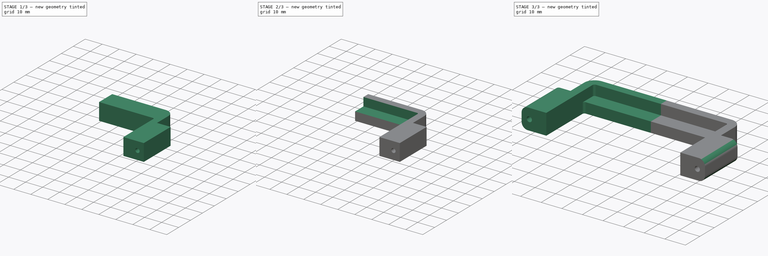
[diagram: build sequence overview — one tinted view per stage of 3, left to right]
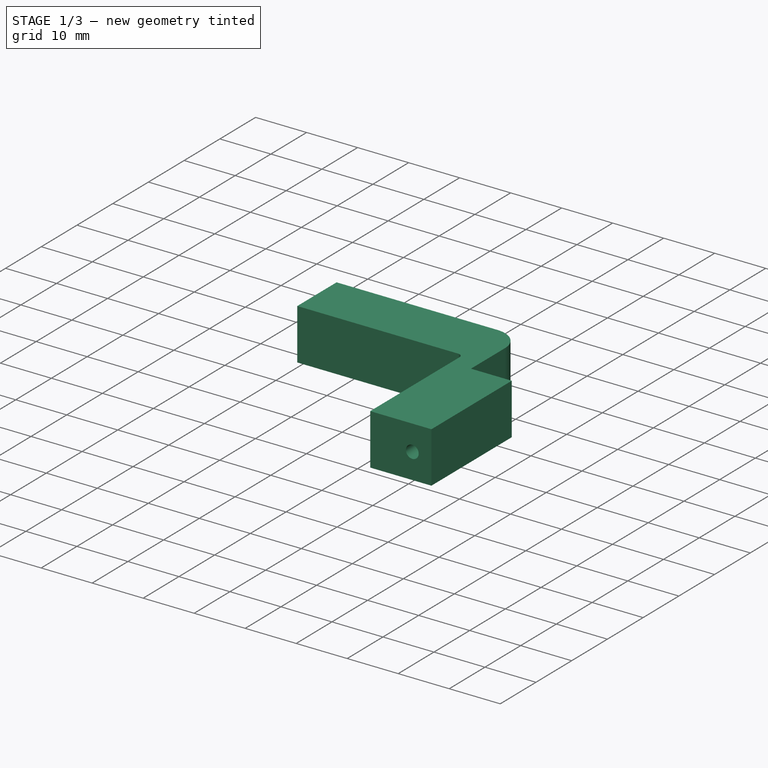
[diagram: stage 1 of 3 — iso view after this stage's code; geometry added in this stage tinted green]
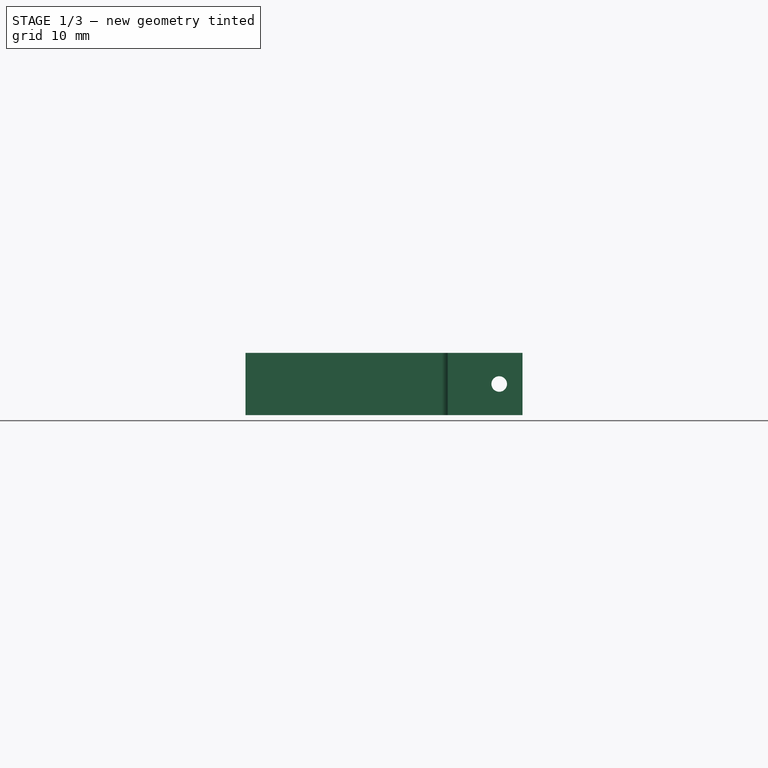
[diagram: stage 1 of 3 — front view after this stage's code; geometry added in this stage tinted green]
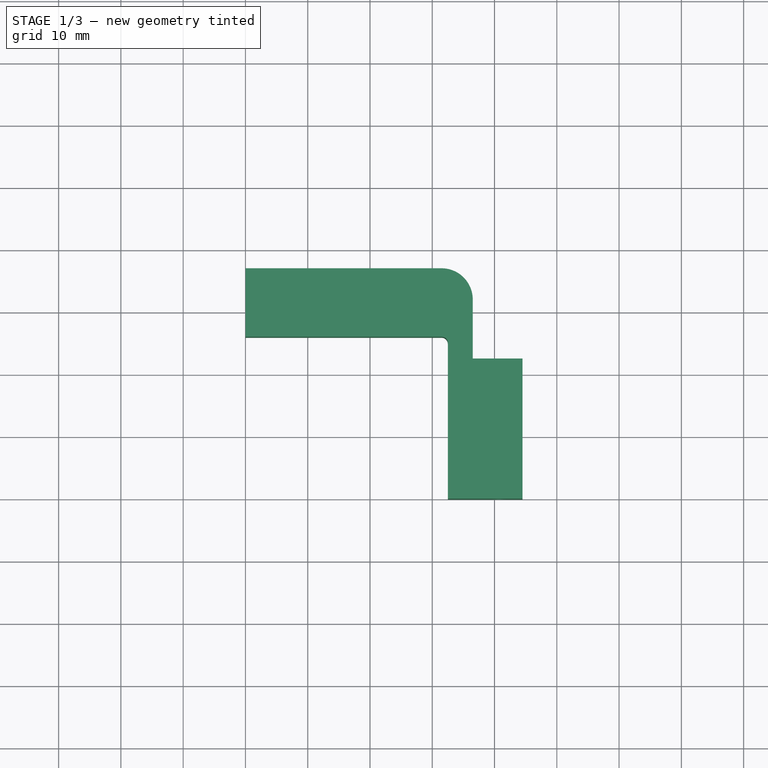
[diagram: stage 1 of 3 — top view after this stage's code; geometry added in this stage tinted green]
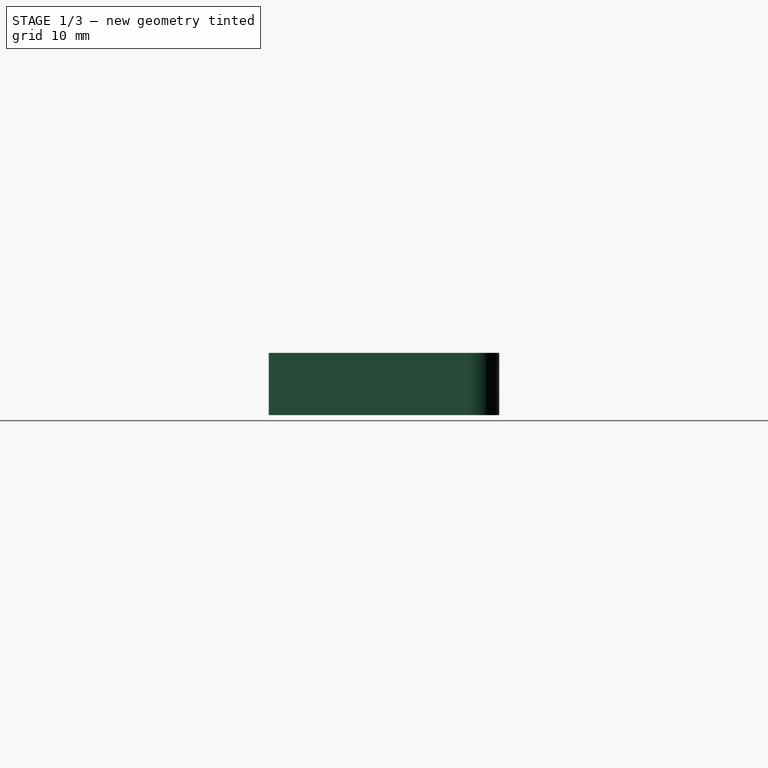
[diagram: stage 1 of 3 — right view after this stage's code; geometry added in this stage tinted green]
FCSTD DOCUMENT  (FreeCAD 1.0R39109 (Git))
Label: Universal 2-Step Clamp
License: All rights reserved
LicenseURL: http://en.wikipedia.org/wiki/All_rights_reserved
objects: Sketcher::SketchObject×3, PartDesign::Pocket×2, Spreadsheet::Sheet×1, PartDesign::Pad×1, PartDesign::Fillet×1, PartDesign::Mirrored×1, PartDesign::Body×1
note: 21 computed .brp shape members not serialized (recipe doc carries the construction recipe); baked Part::Feature solids carry a one-line shape summary decoded from their .brp

FEATURE [Sketcher::SketchObject] Sketch
  ArcFitTolerance = 1e-06
  AttachmentSupport = -> [XY_Plane]
  FullyConstrained = true
  MakeInternals = false
  MapMode = 5
  expr: Constraints[21] = Spreadsheet.inner_radius
  expr: Constraints[22] = Spreadsheet.object_width / 2
  expr: Constraints[23] = Spreadsheet.nail_support_height
  expr: Constraints[24] = Spreadsheet.nail_support_width
  expr: Constraints[25] = Spreadsheet.object_height + Spreadsheet.clamp_thickness
  expr: Constraints[26] = Spreadsheet.object_height_step_2
  expr: Constraints[31] = Spreadsheet.inner_radius + Spreadsheet.clamp_thickness
  sketch-geometry (10):
    g0: LineSegment StartX=0 StartY=26 StartZ=0 EndX=31.5 EndY=26 EndZ=0
    g1: LineSegment StartX=0 StartY=37 StartZ=0 EndX=31.5 EndY=37 EndZ=0
    g2: LineSegment StartX=32.5 StartY=25 StartZ=0 EndX=32.5 EndY=0 EndZ=0
    g3: ArcOfCircle CenterX=31.5 CenterY=25 CenterZ=0 NormalX=0 NormalY=0 NormalZ=1 AngleXU=0 Radius=1 StartAngle=0 EndAngle=1.5708
    g4: LineSegment StartX=0 StartY=37 StartZ=0 EndX=0 EndY=26 EndZ=0
    g5: LineSegment StartX=32.5 StartY=0 StartZ=0 EndX=44.5 EndY=0 EndZ=0
    g6: LineSegment StartX=36.5 StartY=32 StartZ=0 EndX=36.5 EndY=22.5 EndZ=0
    g7: LineSegment StartX=36.5 StartY=22.5 StartZ=0 EndX=44.5 EndY=22.5 EndZ=0
    g8: LineSegment StartX=44.5 StartY=22.5 StartZ=0 EndX=44.5 EndY=0 EndZ=0
    g9: ArcOfCircle CenterX=31.5 CenterY=32 CenterZ=0 NormalX=0 NormalY=0 NormalZ=1 AngleXU=0 Radius=5 StartAngle=0 EndAngle=1.5708
  constraints (32):
    c: PointOnObject(g0,g-2)
    c: Horizontal(g0)
    c: PointOnObject(g1,g-2)
    c: Horizontal(g1)
    c: PointOnObject(g2,g-1)
    c: Vertical(g2)
    c: Coincident(g3,g0)
    c: Coincident(g3,g2)
    c: Coincident(g4,g1)
    c: Coincident(g4,g0)
    c: Vertical(g3,g0)
    c: Vertical(g3,g1)
    c: Horizontal(g3,g2)
    c: Coincident(g5,g2)
    c: PointOnObject(g5,g-1)
    c: Vertical(g6)
    c: Coincident(g7,g6)
    c: Horizontal(g7)
    c: Coincident(g8,g7)
    c: Coincident(g8,g5)
    c: Vertical(g8)
    c: Radius(g3) = 1
    c: DistanceX(g-1,g2) = 32.5
    c: DistanceY(g8,g8) = 22.5
    c: DistanceX(g7,g7) = 8
    c: DistanceY(g-1,g1) = 37
    c: DistanceY(g-1,g0) = 26
    c: Coincident(g9,g6)
    c: Coincident(g9,g1)
    c: Vertical(g3,g9)
    c: Horizontal(g9,g6)
    c: Radius(g9) = 5
FEATURE [Spreadsheet::Sheet] Spreadsheet
  cells = A1='object_width; B1(object_width)=65; A2='object_height; B2(object_height)=33; A3='object_height_step_2; B3(object_height_step_2)=26; A4='inner_radius; B4(inner_radius)=1; A5='nail_diameter; B5(nail_diameter)=2.5; A6='clamp_width; B6(clamp_width)=10; A7='clamp_thickness; B7(clamp_thickness)=4; A8='nail_support_height; B8(nail_support_height)=22.5; A9='nail_support_width; B9(nail_support_width)=8; A10='nail_support_edge_radius; B10(nail_support_edge_radius)=3
FEATURE [PartDesign::Pad] Pad
  Direction = (0,0,1)
  Length = 10
  Length2 = 10
  Profile = -> Sketch
  ReferenceAxis = -> Sketch [N_Axis]
  Suppressed = false
  Type = 0
  expr: Length = Spreadsheet.clamp_width
FEATURE [Sketcher::SketchObject] Sketch001
  ArcFitTolerance = 1e-06
  AttachmentSupport = -> [Pad]
  FullyConstrained = true
  MakeInternals = false
  MapMode = 5
  Placement = pos=(0,22.5,0) rot=(0,0.707107,0.707107;3.14159rad)
  expr: Constraints[0] = Spreadsheet.nail_diameter
  expr: Constraints[1] = Spreadsheet.clamp_width / 2
  expr: Constraints[2] = Spreadsheet.object_width / 2 + Spreadsheet.clamp_thickness + Spreadsheet.nail_support_width - Spreadsheet.nail_diameter * 1.5
  sketch-geometry (1):
    g0: Circle CenterX=-40.75 CenterY=5 CenterZ=0 NormalX=0 NormalY=0 NormalZ=1 AngleXU=0 Radius=1.25
  constraints (3):
    c: Diameter(g0) = 2.5
    c: DistanceY(g-1,g0) = 5
    c: DistanceX(g0,g-1) = 40.75
FEATURE [PartDesign::Pocket] Pocket
  BaseFeature = -> Pad
  Direction = (0,-1,2e-16)
  Length = 5
  Length2 = 5
  Profile = -> Sketch001
  ReferenceAxis = -> Sketch001 [N_Axis]
  Suppressed = false
  Type = 1
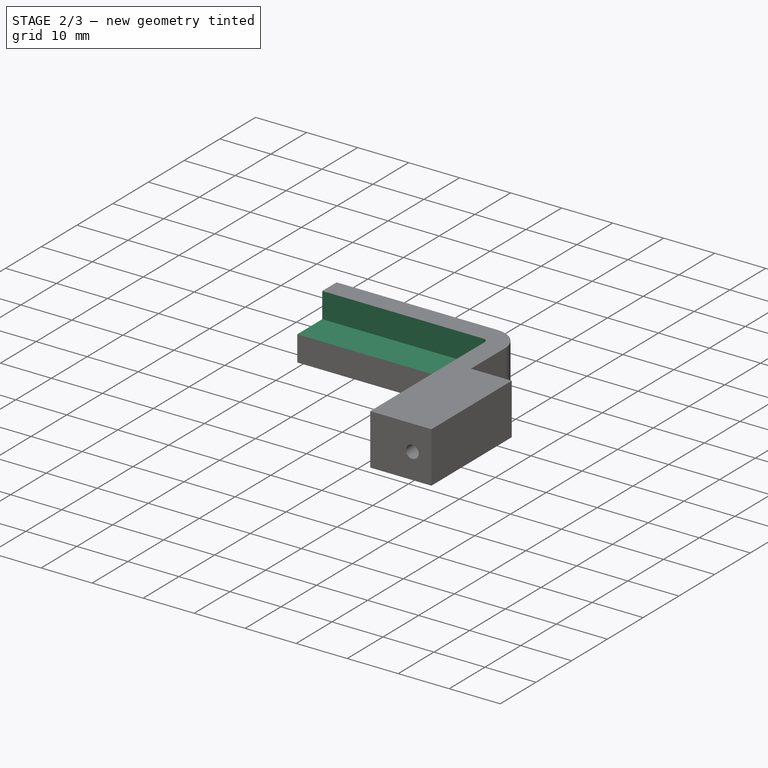
[diagram: stage 2 of 3 — iso view after this stage's code; geometry added in this stage tinted green]
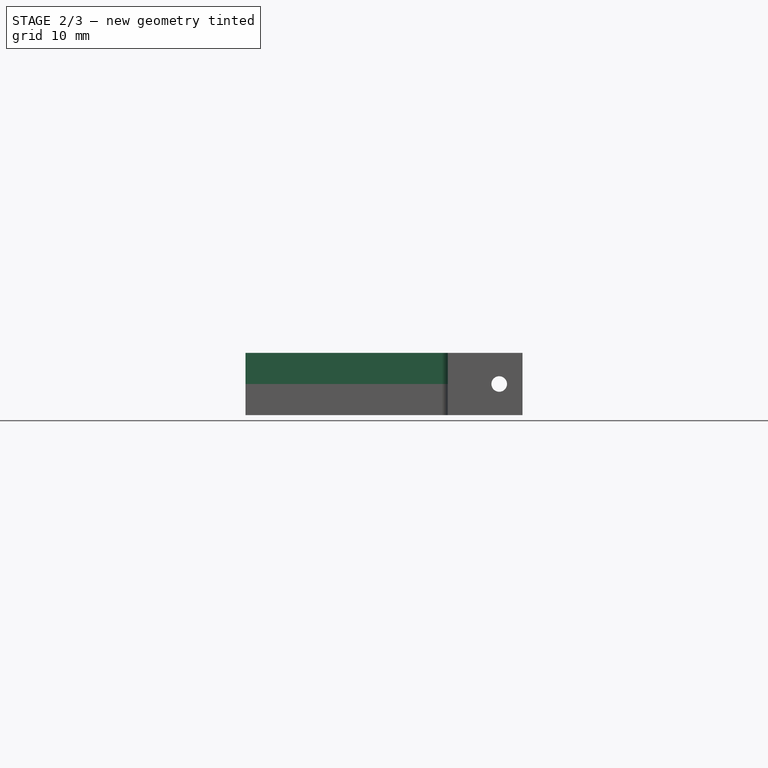
[diagram: stage 2 of 3 — front view after this stage's code; geometry added in this stage tinted green]
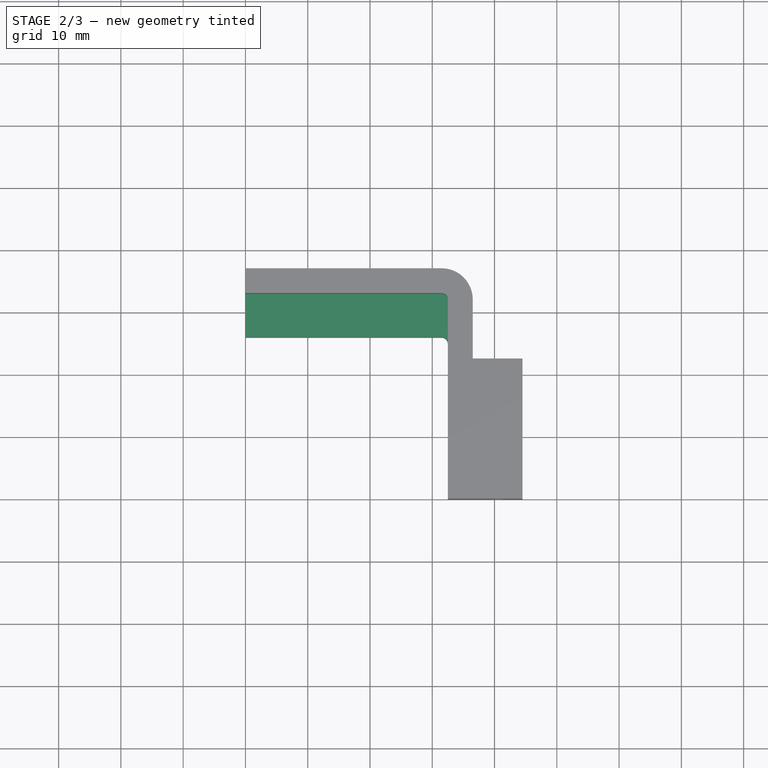
[diagram: stage 2 of 3 — top view after this stage's code; geometry added in this stage tinted green]
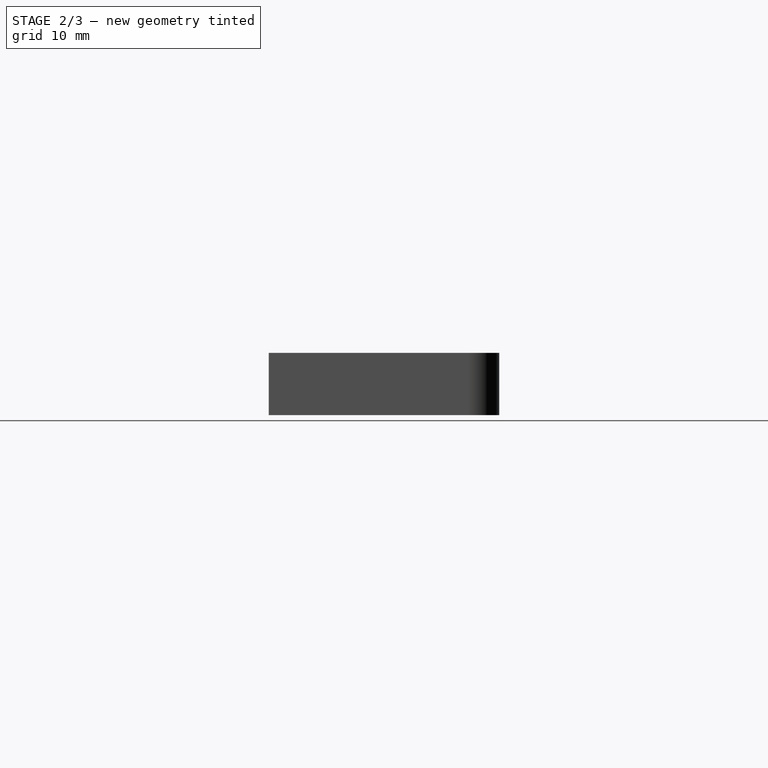
[diagram: stage 2 of 3 — right view after this stage's code; geometry added in this stage tinted green]
FEATURE [Sketcher::SketchObject] Sketch002
  ArcFitTolerance = 1e-06
  AttachmentSupport = -> [Pocket]
  FullyConstrained = true
  MakeInternals = false
  MapMode = 5
  Placement = pos=(0,0,10) rot=(0,0,1;0rad)
  expr: Constraints[10] = Spreadsheet.object_height
  expr: Constraints[8] = Spreadsheet.inner_radius
  expr: Constraints[9] = Spreadsheet.object_width / 2
  sketch-geometry (5):
    g0: LineSegment StartX=0 StartY=0 StartZ=0 EndX=32.5 EndY=0 EndZ=0
    g1: LineSegment StartX=32.5 StartY=0 StartZ=0 EndX=32.5 EndY=32 EndZ=0
    g2: LineSegment StartX=0 StartY=0 StartZ=0 EndX=0 EndY=33 EndZ=0
    g3: LineSegment StartX=0 StartY=33 StartZ=0 EndX=31.5 EndY=33 EndZ=0
    g4: ArcOfCircle CenterX=31.5 CenterY=32 CenterZ=0 NormalX=0 NormalY=0 NormalZ=1 AngleXU=0 Radius=1 StartAngle=-9e-16 EndAngle=1.5708
  constraints (13):
    c: Coincident(g0,g-1)
    c: PointOnObject(g0,g-1)
    c: Coincident(g1,g0)
    c: Vertical(g1)
    c: Coincident(g2,g0)
    c: PointOnObject(g2,g-2)
    c: Coincident(g3,g2)
    c: Horizontal(g3)
    c: Radius(g4) = 1
    c: DistanceX(g0,g0) = 32.5
    c: DistanceY(g2,g2) = 33
    c: Tangent(g4,g3) = 1.5708
    c: Tangent(g4,g1) = -1.5708
FEATURE [PartDesign::Pocket] Pocket001
  BaseFeature = -> Pocket
  Direction = (0,0,-1)
  Length = 5
  Length2 = 5
  Profile = -> Sketch002
  ReferenceAxis = -> Sketch002 [N_Axis]
  Suppressed = false
  Type = 0
  expr: Length = Spreadsheet.clamp_width / 2
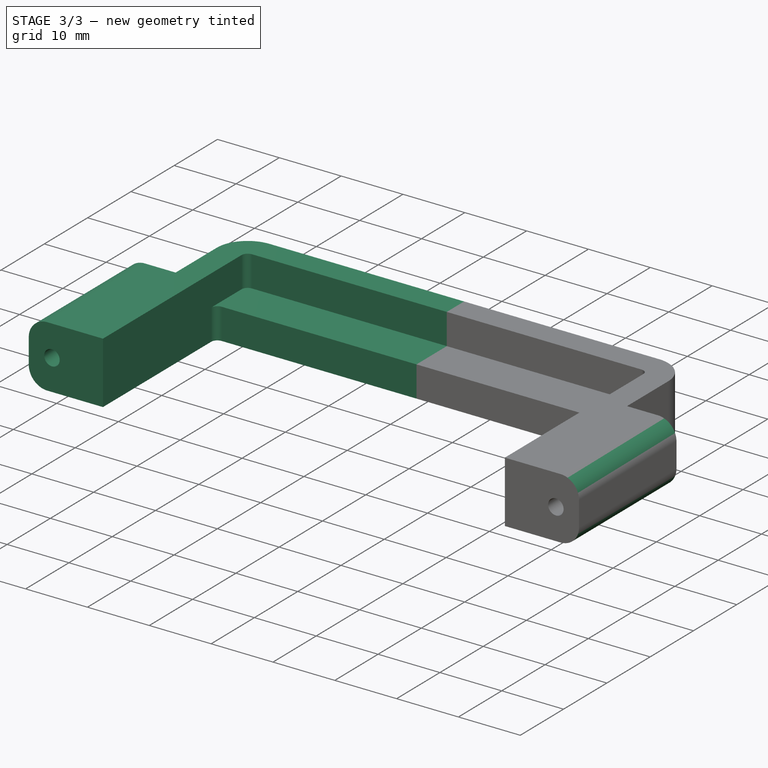
[diagram: stage 3 of 3 — iso view after this stage's code; geometry added in this stage tinted green]
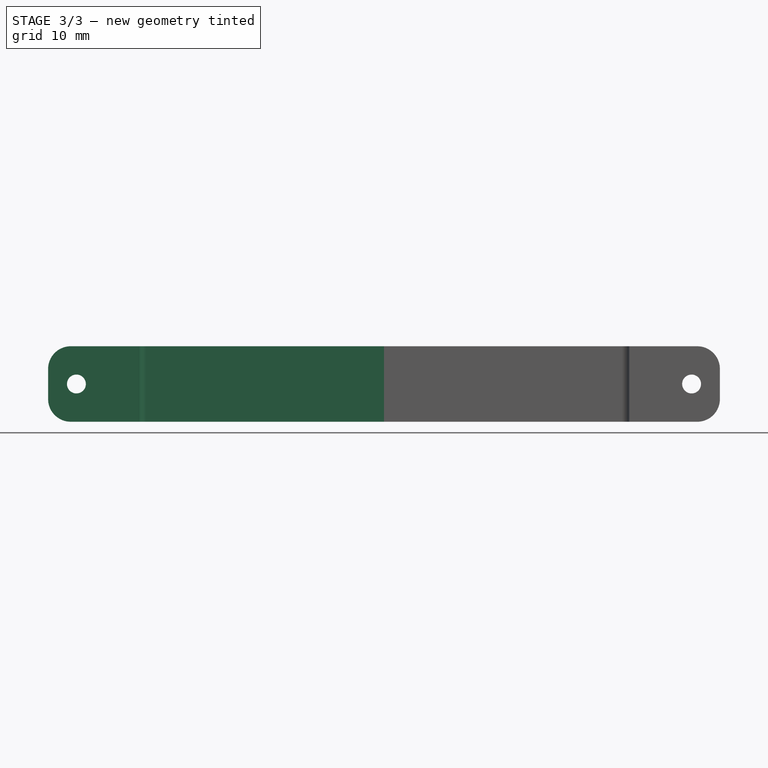
[diagram: stage 3 of 3 — front view after this stage's code; geometry added in this stage tinted green]
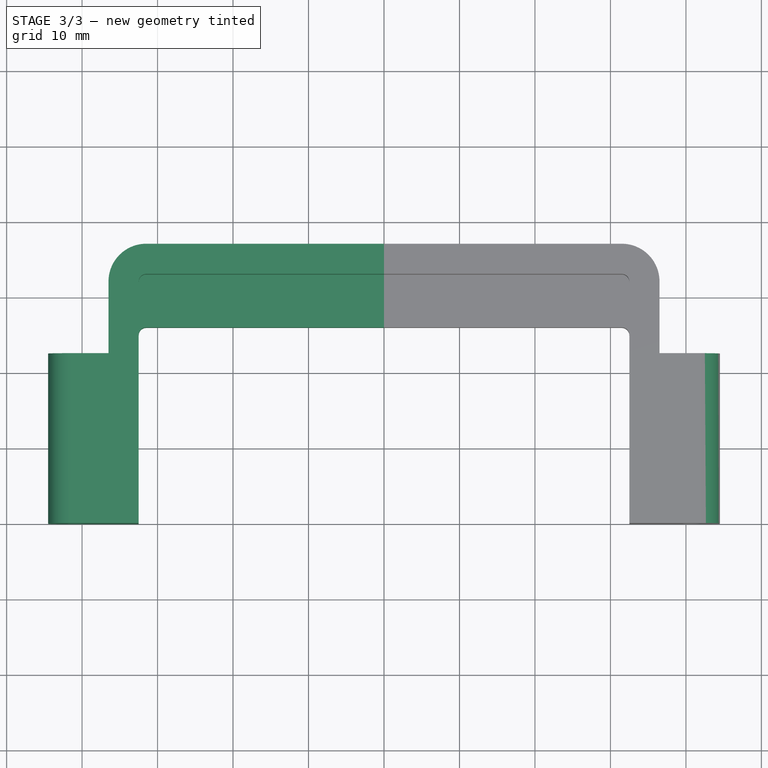
[diagram: stage 3 of 3 — top view after this stage's code; geometry added in this stage tinted green]
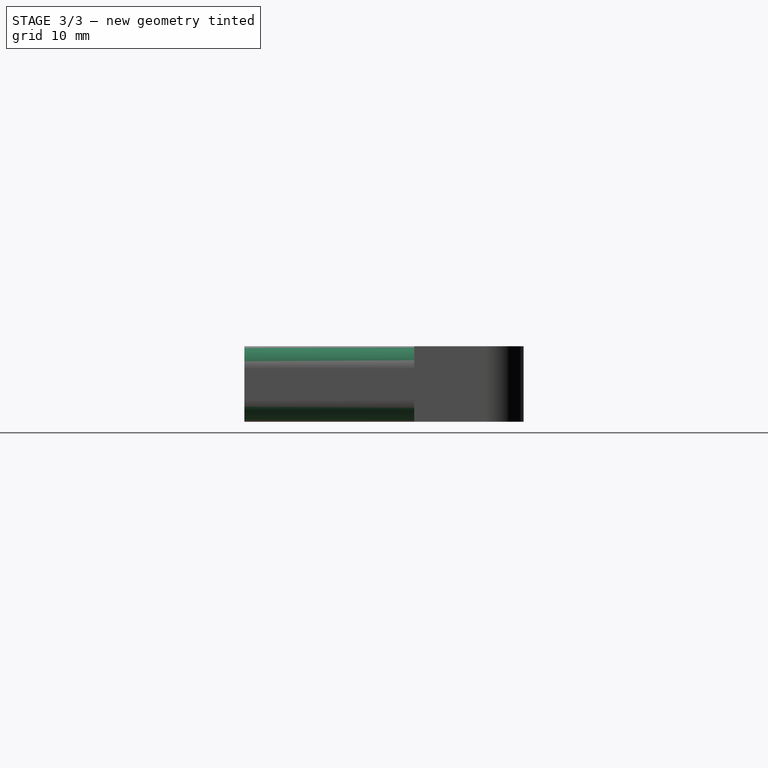
[diagram: stage 3 of 3 — right view after this stage's code; geometry added in this stage tinted green]
FEATURE [PartDesign::Fillet] Fillet
  Base = -> Pocket001 [Edge28,Edge11]
  BaseFeature = -> Pocket001
  Radius = 3
  SupportTransform = false
  Suppressed = false
  UseAllEdges = false
  expr: Radius = Spreadsheet.nail_support_edge_radius
FEATURE [PartDesign::Mirrored] Mirrored
  BaseFeature = -> Fillet
  MirrorPlane = -> YZ_Plane
  Suppressed = false
  TransformMode = 1
FEATURE [PartDesign::Body] Body
  AllowCompound = false
  Group = -> [Sketch,Pad,Sketch001,Pocket,Sketch002,Pocket001,Fillet,Mirrored]
  Origin = -> Origin
  Tip = -> Mirrored
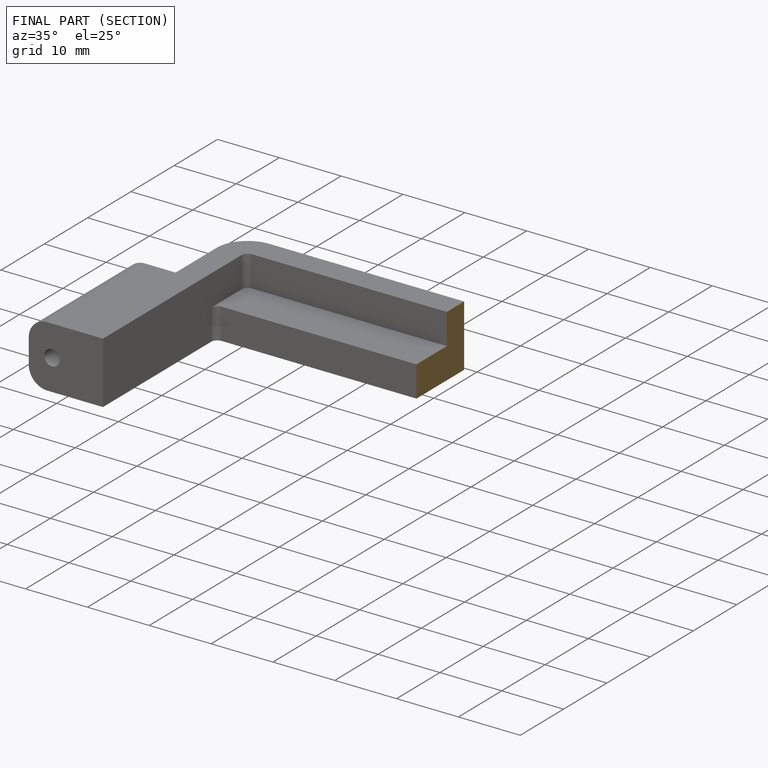
[diagram: finished part — half-section view (interior)]
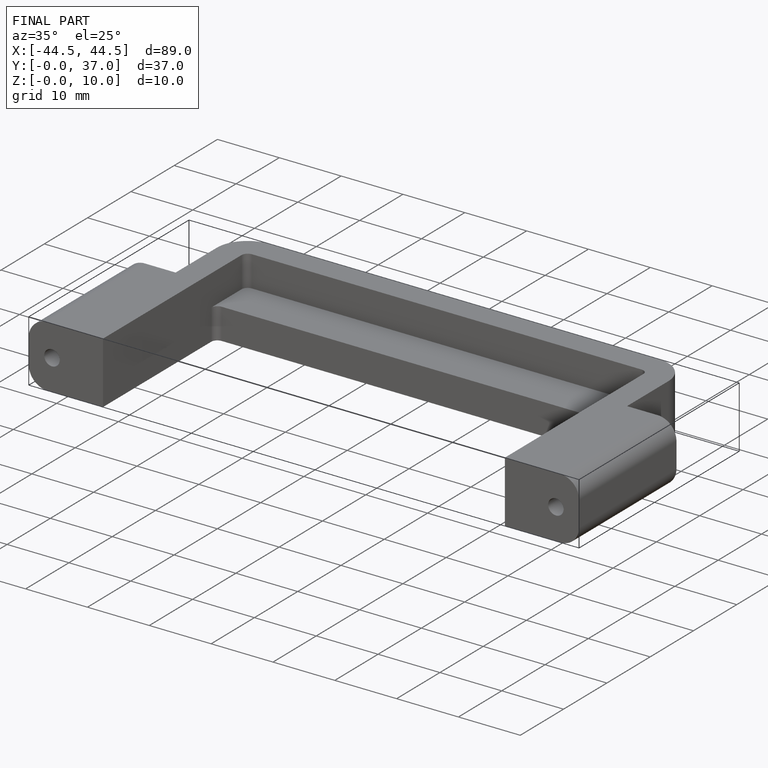
[diagram: finished part — iso view with bounding-box wireframe]
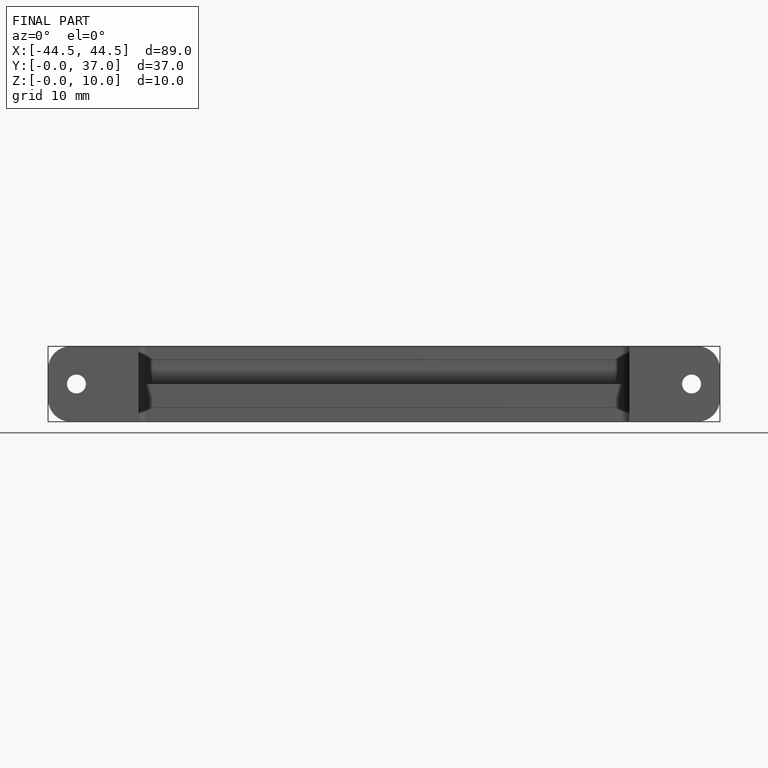
[diagram: finished part — front view with bounding-box wireframe]
